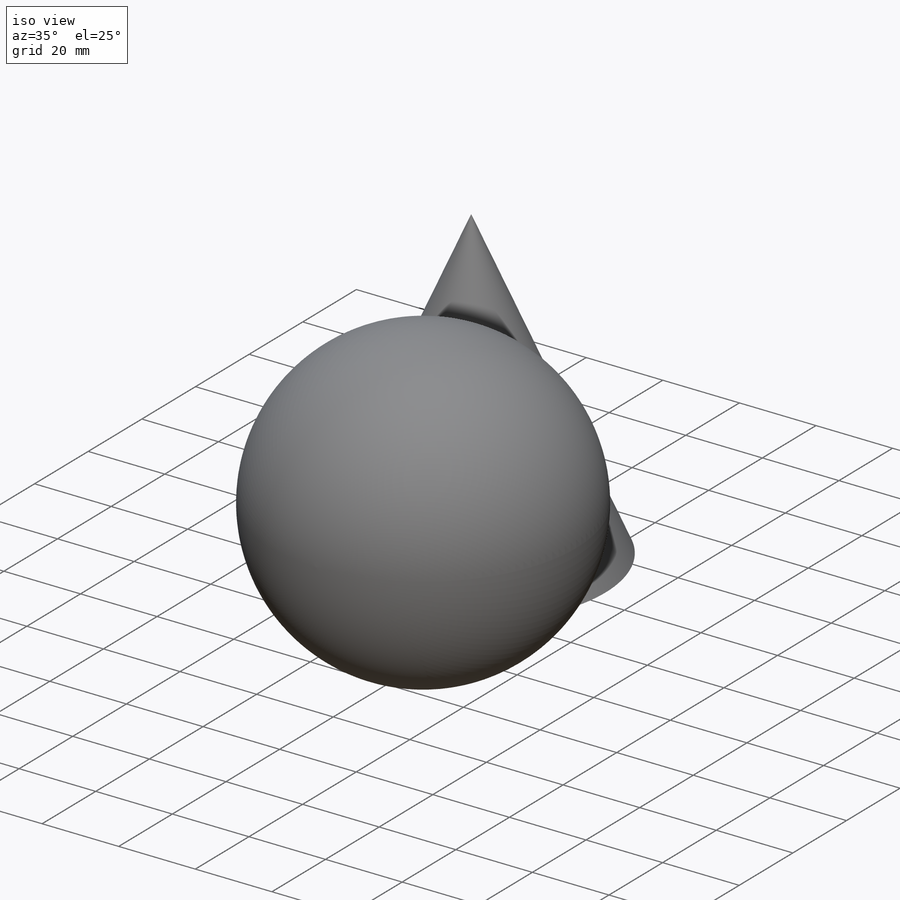
[diagram: iso view]
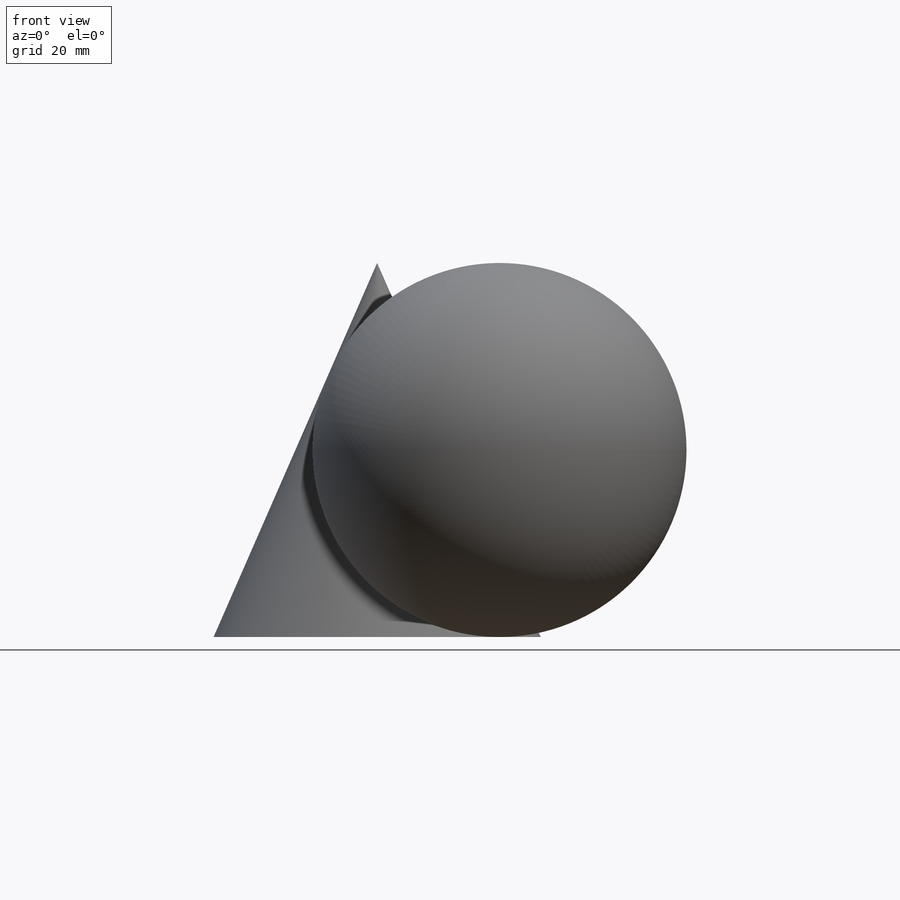
[diagram: front view]
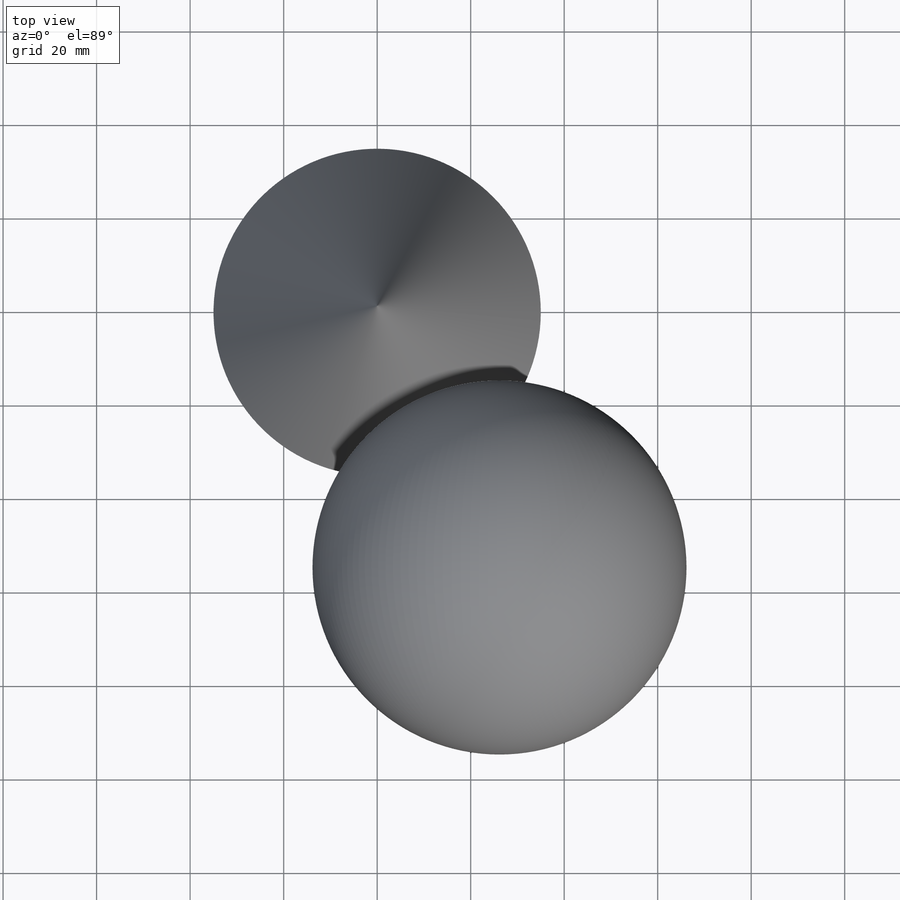
[diagram: top view]
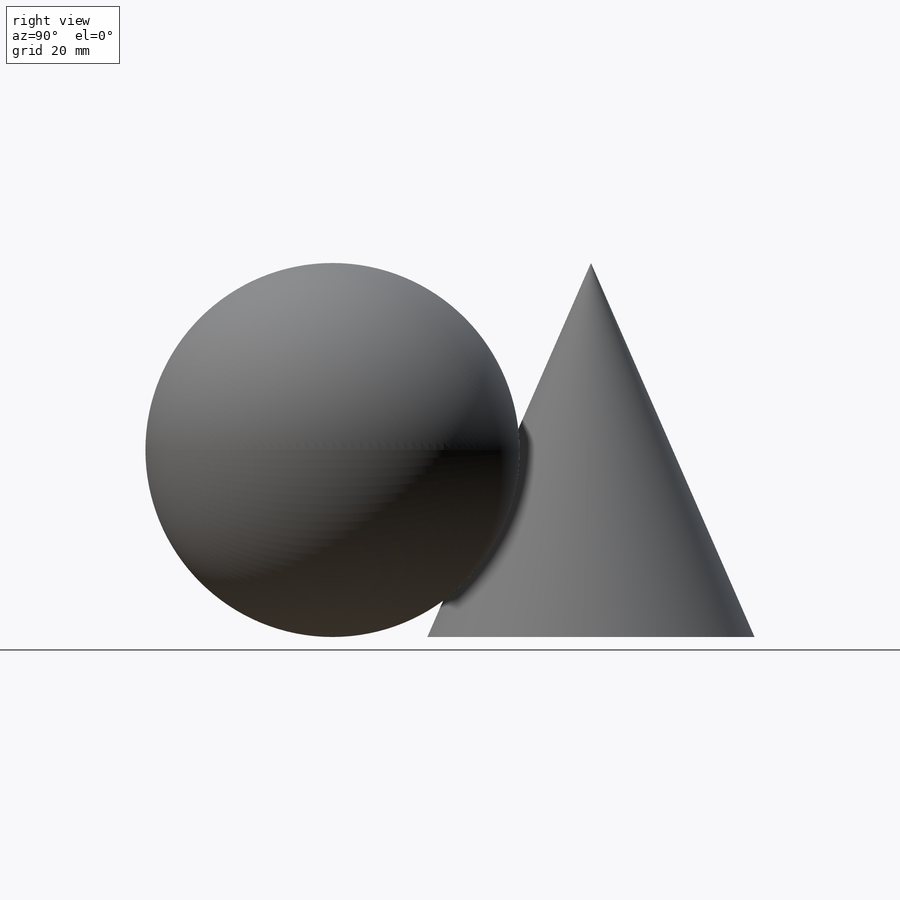
[diagram: right view]
SOLIDWORKS PART (.sldprt)
format: sldprt  version: not decoded by parser v0  size: 582,144 bytes
history: native  units: mm
features: sketch x6, revolve x3, plane x3, material x1 (+16 scaffold rows collapsed)
feature tree (29):
  scaffold x16  (default folders/planes/origin — collapsed)
  material  "Material <not specified>"
  sketch  "Sketch1"  dims[D1=80.0mm D2=35.0mm]
  revolve  "Revolve1"  Angle=360deg
  sketch  "Sketch2"  dims[D1=40.0mm]
  plane  "Plane1"  Offset=40mm
  sketch  "Sketch3"  dims[D1=80.0mm]
  revolve  "Revolve2"  Angle=360deg
  sketch  "Sketch5"  dims[D1=40.0mm]
  plane  "Plane2"
  sketch  "Sketch6"  dims[D1=40.0mm]
  plane  "Plane3"  Offset=20mm
  sketch  "Sketch7"  dims[D1=40.0mm]
  revolve  "Revolve3"  Angle=360deg
decode coverage: 9 of 9 modeling features carry decoded parameters
note: suppression state not decoded; provenance and decode notes live in map.json
